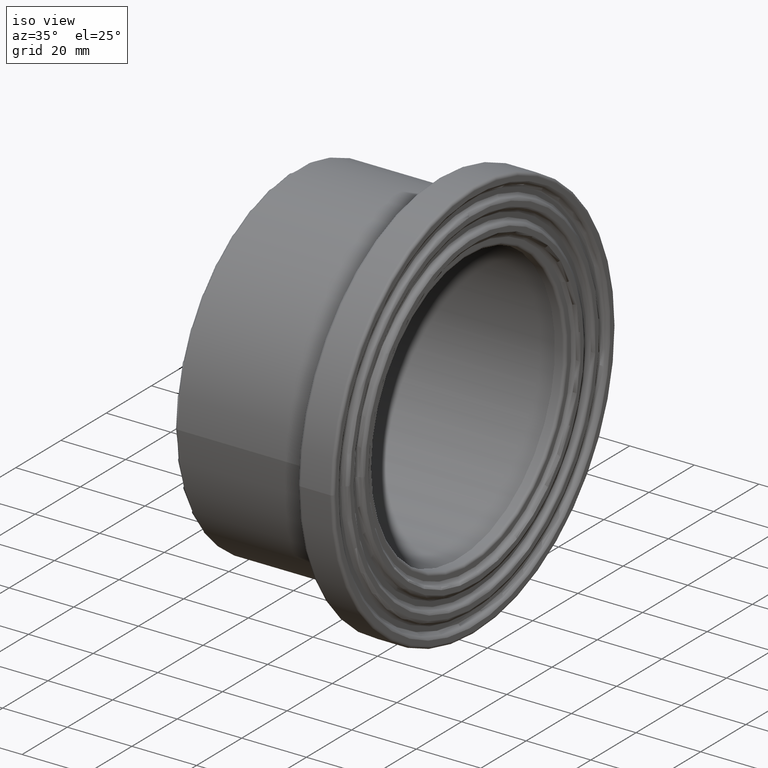
[diagram: clean part render]
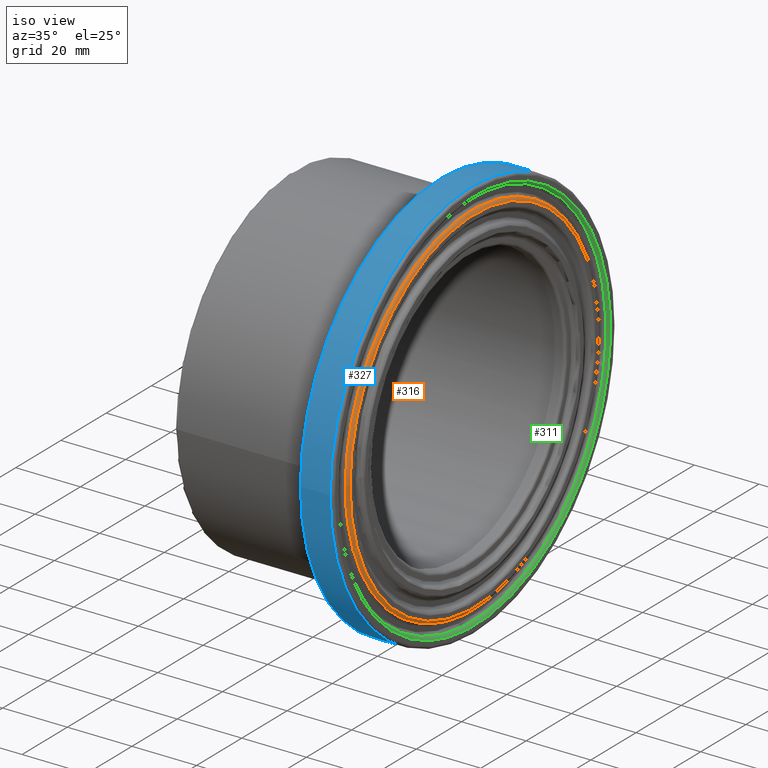
[diagram: same view with three faces highlighted in distinct colors, each labeled with its STEP entity id]
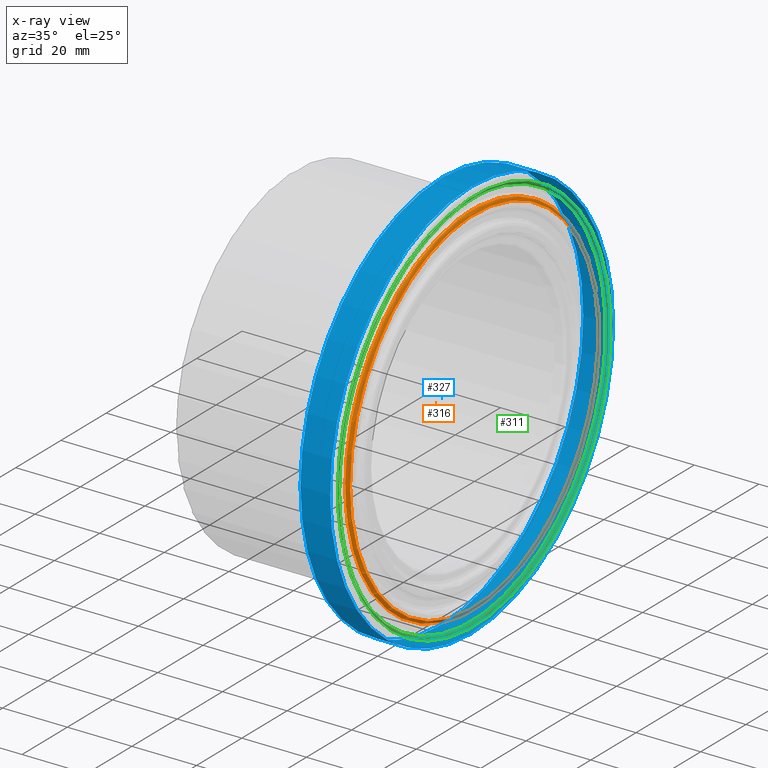
[diagram: x-ray of the same camera — body ghosted, the three highlighted faces saturated]
A machine part, iso view with three faces highlighted in distinct colors.
The next image is the same camera in x-ray (body ghosted, the three faces saturated) — at least one of them is partly hidden behind the body in this view.
Their STEP definitions:

[orange] entity #316 — the highlighted toroidal blend (fillet) surface has major radius 55.0167 mm and minor (blend) radius 0.9 mm.
#30=B_SPLINE_CURVE_WITH_KNOTS('',3,(#1364,#1365,#1366,#1367,#1368,#1369,
#1370,#1371,#1372,#1373,#1374,#1375,#1376,#1377,#1378,#1379,#1380,#1381,
#1382,#1383,#1384,#1385,#1386,#1387,#1388,#1389,#1390,#1391,#1392,#1393,
#1394,#1395,#1396,#1397,#1398,#1399,#1400,#1401,#1402,#1403,#1404,#1405,
#1406,#1407,#1408),.UNSPECIFIED.,.T.,.F.,(4,1,1,1,1,1,1,1,1,1,1,1,1,1,1,
1,1,1,1,1,1,1,1,1,1,1,1,1,1,1,1,1,1,1,1,1,1,1,1,1,1,1,4),(-17.7403219708621,
-17.4235305070968,-16.4731561158006,-15.205990260739,-13.9388244056774,
-13.7804286737947,-13.3052414781466,-12.6716585506158,-11.4044926955542,
-11.1668990977302,-10.7709097680235,-10.1373268404927,-8.87016098543108,
-8.55336952166568,-7.60299513036949,-6.33582927530791,-5.06866342024633,
-3.80149756518475,-3.16791463765396,-2.69272744200586,-2.53433171012317,
-0.844777236707723,0.84477723670772,1.68955447341544,2.32313740094623,2.53433171012316,
4.22388618353861,5.06866342024633,5.70224634777712,5.91344065695405,6.33582927530791,
7.60299513036949,8.23657805790028,8.87016098543107,10.1373268404927,10.7709097680234,
11.4044926955542,12.6716585506158,13.9388244056774,15.205990260739,15.8395731882698,
16.4731561158006,17.7403219708621),.UNSPECIFIED.);
#51=FACE_BOUND('',#114,.T.);
#77=FACE_OUTER_BOUND('',#113,.T.);
#113=EDGE_LOOP('',(#257));
#114=EDGE_LOOP('',(#258));
#154=CIRCLE('',#353,55.0166666666667);
#180=VERTEX_POINT('',#1362);
#181=VERTEX_POINT('',#1410);
#211=EDGE_CURVE('',#180,#180,#30,.T.);
#212=EDGE_CURVE('',#181,#181,#154,.T.);
#257=ORIENTED_EDGE('',*,*,#212,.T.);
#258=ORIENTED_EDGE('',*,*,#211,.F.);
#298=TOROIDAL_SURFACE('',#352,55.0166666666667,0.9);
#316=ADVANCED_FACE('',(#77,#51),#298,.T.);
#352=AXIS2_PLACEMENT_3D('',#1409,#417,#418);
#353=AXIS2_PLACEMENT_3D('',#1411,#419,#420);
#417=DIRECTION('center_axis',(-1.,0.,0.));
#418=DIRECTION('ref_axis',(0.,0.,1.));
#419=DIRECTION('center_axis',(-1.,0.,0.));
#420=DIRECTION('ref_axis',(0.,1.,6.12323399573677E-17));
#1362=CARTESIAN_POINT('',(55.175,-55.9135177970359,0.0453922252004739));
#1364=CARTESIAN_POINT('Ctrl Pts',(55.175,-55.9131509623106,0.0471687016405214));
#1365=CARTESIAN_POINT('Ctrl Pts',(55.175,-55.9122928399431,1.08799750689437));
#1366=CARTESIAN_POINT('Ctrl Pts',(55.175,-55.7965319444725,5.25926535189226));
#1367=CARTESIAN_POINT('Ctrl Pts',(55.175,-54.5981719908783,13.6322759894065));
#1368=CARTESIAN_POINT('Ctrl Pts',(55.175,-50.7896977527047,24.4848727135427));
#1369=CARTESIAN_POINT('Ctrl Pts',(55.175,-45.9991643498692,32.1038292095051));
#1370=CARTESIAN_POINT('Ctrl Pts',(55.175,-42.010614944861,36.9447142978551));
#1371=CARTESIAN_POINT('Ctrl Pts',(55.175,-39.1947147851468,40.0015427920602));
#1372=CARTESIAN_POINT('Ctrl Pts',(55.175,-33.3256902547513,45.242372841901));
#1373=CARTESIAN_POINT('Ctrl Pts',(55.175,-27.2724531552318,49.0293852173437));
#1374=CARTESIAN_POINT('Ctrl Pts',(55.175,-21.5929402063712,51.6074720105194));
#1375=CARTESIAN_POINT('Ctrl Pts',(55.175,-17.6998054186199,53.1223433980982));
#1376=CARTESIAN_POINT('Ctrl Pts',(55.175,-10.359279466872,55.2265622031622));
#1377=CARTESIAN_POINT('Ctrl Pts',(55.175,-3.05445734043409,56.0334001964731));
#1378=CARTESIAN_POINT('Ctrl Pts',(55.175,5.2872436627866,55.792195049407));
#1379=CARTESIAN_POINT('Ctrl Pts',(55.1750000000001,13.6572019705274,54.5928366524379));
#1380=CARTESIAN_POINT('Ctrl Pts',(55.1749999999999,24.5112935552137,50.778136627234));
#1381=CARTESIAN_POINT('Ctrl Pts',(55.1750000000001,35.2577410596596,44.0065223994022));
#1382=CARTESIAN_POINT('Ctrl Pts',(55.175,42.6314590482863,36.5951440530814));
#1383=CARTESIAN_POINT('Ctrl Pts',(55.175,47.2066622173805,30.1405379970932));
#1384=CARTESIAN_POINT('Ctrl Pts',(55.175,49.2675839686416,26.5033006348747));
#1385=CARTESIAN_POINT('Ctrl Pts',(55.175,52.6680947135056,19.6680759764681));
#1386=CARTESIAN_POINT('Ctrl Pts',(55.175,56.1148869801003,8.41823750611203));
#1387=CARTESIAN_POINT('Ctrl Pts',(55.175,56.1257614495683,-5.60272134489198));
#1388=CARTESIAN_POINT('Ctrl Pts',(55.175,53.7764251680406,-15.8953254268265));
#1389=CARTESIAN_POINT('Ctrl Pts',(55.175,51.838731929448,-21.0996178750399));
#1390=CARTESIAN_POINT('Ctrl Pts',(55.1750000000001,48.3638040259296,-28.6908326680599));
#1391=CARTESIAN_POINT('Ctrl Pts',(55.175,43.1587766321941,-36.3113488821216));
#1392=CARTESIAN_POINT('Ctrl Pts',(55.175,35.5149771313842,-43.3892074027893));
#1393=CARTESIAN_POINT('Ctrl Pts',(55.175,30.9321196483551,-46.6483732616814));
#1394=CARTESIAN_POINT('Ctrl Pts',(55.175,27.3367841619769,-48.8097274303188));
#1395=CARTESIAN_POINT('Ctrl Pts',(55.175,21.7920139444824,-51.7357163490984));
#1396=CARTESIAN_POINT('Ctrl Pts',(55.175,14.544853565809,-54.2751340414106));
#1397=CARTESIAN_POINT('Ctrl Pts',(55.175,6.21588625787339,-55.6849617169828));
#1398=CARTESIAN_POINT('Ctrl Pts',(55.175,-2.08942963539291,-56.1461782305316));
#1399=CARTESIAN_POINT('Ctrl Pts',(55.1749999999999,-10.4923655659142,-55.2042737476747));
#1400=CARTESIAN_POINT('Ctrl Pts',(55.175,-18.5510008536513,-52.8677841008181));
#1401=CARTESIAN_POINT('Ctrl Pts',(55.175,-26.2466592390811,-49.682820865482));
#1402=CARTESIAN_POINT('Ctrl Pts',(55.175,-35.2168317382732,-44.0350796370078));
#1403=CARTESIAN_POINT('Ctrl Pts',(55.175,-44.0827086462239,-35.1526264929434));
#1404=CARTESIAN_POINT('Ctrl Pts',(55.175,-49.7231553771372,-26.1737695579676));
#1405=CARTESIAN_POINT('Ctrl Pts',(55.175,-52.8885584212603,-18.488735456795));
#1406=CARTESIAN_POINT('Ctrl Pts',(55.175,-55.2255358575038,-10.389580737395));
#1407=CARTESIAN_POINT('Ctrl Pts',(55.1750000000001,-55.9165834517808,-4.11614651937488));
#1408=CARTESIAN_POINT('Ctrl Pts',(55.175,-55.9131509623106,0.0471687016405218));
#1409=CARTESIAN_POINT('Origin',(55.1,0.,0.));
#1410=CARTESIAN_POINT('',(56.,-55.0166666666667,3.36879923665451E-15));
#1411=CARTESIAN_POINT('Origin',(56.,0.,0.));

[blue] entity #327 — the highlighted cylindrical surface (bore or boss wall) has radius 62.5 mm, axis along (-1, 0, 0).
#22=CYLINDRICAL_SURFACE('',#371,62.5);
#60=FACE_BOUND('',#134,.T.);
#88=FACE_OUTER_BOUND('',#133,.T.);
#133=EDGE_LOOP('',(#283));
#134=EDGE_LOOP('',(#284));
#163=CIRCLE('',#370,62.5);
#164=CIRCLE('',#372,62.5);
#191=VERTEX_POINT('',#1997);
#192=VERTEX_POINT('',#2000);
#224=EDGE_CURVE('',#191,#191,#163,.T.);
#225=EDGE_CURVE('',#192,#192,#164,.T.);
#283=ORIENTED_EDGE('',*,*,#225,.F.);
#284=ORIENTED_EDGE('',*,*,#224,.F.);
#327=ADVANCED_FACE('',(#88,#60),#22,.T.);
#370=AXIS2_PLACEMENT_3D('',#1998,#453,#454);
#371=AXIS2_PLACEMENT_3D('',#1999,#455,#456);
#372=AXIS2_PLACEMENT_3D('',#2001,#457,#458);
#453=DIRECTION('center_axis',(1.,0.,0.));
#454=DIRECTION('ref_axis',(0.,1.,6.12323399573677E-17));
#455=DIRECTION('center_axis',(-1.,0.,0.));
#456=DIRECTION('ref_axis',(0.,-1.,0.));
#457=DIRECTION('center_axis',(-1.,0.,0.));
#458=DIRECTION('ref_axis',(0.,1.,6.12323399573677E-17));
#1997=CARTESIAN_POINT('',(55.1,-62.5,-1.14810637420064E-14));
#1998=CARTESIAN_POINT('Origin',(55.1,0.,0.));
#1999=CARTESIAN_POINT('Origin',(50.5,0.,0.));
#2000=CARTESIAN_POINT('',(45.9,-62.5,3.82702124733548E-15));
#2001=CARTESIAN_POINT('Origin',(45.9,0.,0.));

[green] entity #311 — the highlighted face is a freeform B-spline surface patch.
#16=B_SPLINE_SURFACE_WITH_KNOTS('',3,3,((#780,#781,#782,#783,#784,#785,
#786,#787,#788,#789,#790,#791,#792,#793,#794,#795,#796,#797,#798,#799,#800,
#801,#802,#803,#804,#805,#806,#807,#808,#809,#810,#811,#812,#813,#814,#815,
#816,#817,#818,#819,#820,#821,#822),(#823,#824,#825,#826,#827,#828,#829,
#830,#831,#832,#833,#834,#835,#836,#837,#838,#839,#840,#841,#842,#843,#844,
#845,#846,#847,#848,#849,#850,#851,#852,#853,#854,#855,#856,#857,#858,#859,
#860,#861,#862,#863,#864,#865),(#866,#867,#868,#869,#870,#871,#872,#873,
#874,#875,#876,#877,#878,#879,#880,#881,#882,#883,#884,#885,#886,#887,#888,
#889,#890,#891,#892,#893,#894,#895,#896,#897,#898,#899,#900,#901,#902,#903,
#904,#905,#906,#907,#908),(#909,#910,#911,#912,#913,#914,#915,#916,#917,
#918,#919,#920,#921,#922,#923,#924,#925,#926,#927,#928,#929,#930,#931,#932,
#933,#934,#935,#936,#937,#938,#939,#940,#941,#942,#943,#944,#945,#946,#947,
#948,#949,#950,#951),(#952,#953,#954,#955,#956,#957,#958,#959,#960,#961,
#962,#963,#964,#965,#966,#967,#968,#969,#970,#971,#972,#973,#974,#975,#976,
#977,#978,#979,#980,#981,#982,#983,#984,#985,#986,#987,#988,#989,#990,#991,
#992,#993,#994)),.UNSPECIFIED.,.F.,.T.,.F.,(4,1,4),(4,1,1,1,1,1,1,1,1,1,
1,1,1,1,1,1,1,1,1,1,1,1,1,1,1,1,1,1,1,1,1,1,1,1,1,1,1,1,1,1,4),(0.,0.571428571428571,
1.),(-18.7682186332356,-17.4276315880045,-16.7573380653889,-16.0870445427733,
-14.7464574975422,-13.4058704523111,-12.06528340708,-11.3949898844644,-10.7246963618489,
-10.0544028392333,-8.71381579400223,-8.04352227138667,-7.14979757456593,
-6.25607287774519,-6.03264170354,-5.36234818092445,-4.4686234841037,-2.68117409046222,
-2.45774291625704,-1.78744939364148,-0.893724696820739,2.68117409046222,
3.35146761307778,4.69205465830889,5.36234818092445,6.70293522615556,8.04352227138667,
8.37866903269445,9.38410931661778,10.0544028392333,10.7246963618489,11.5625632651183,
12.06528340708,12.7355769296956,13.4058704523111,13.7410172136189,14.7464574975422,
16.0870445427733,17.4276315880045,17.7627783493122,18.7682186332356),
 .UNSPECIFIED.);
#27=B_SPLINE_CURVE_WITH_KNOTS('',3,(#998,#999,#1000,#1001,#1002,#1003,#1004,
#1005,#1006,#1007,#1008,#1009,#1010,#1011,#1012,#1013,#1014,#1015,#1016,
#1017,#1018,#1019,#1020,#1021,#1022,#1023,#1024,#1025,#1026,#1027,#1028,
#1029,#1030,#1031,#1032,#1033,#1034,#1035,#1036,#1037,#1038,#1039,#1040),
 .UNSPECIFIED.,.T.,.F.,(4,1,1,1,1,1,1,1,1,1,1,1,1,1,1,1,1,1,1,1,1,1,1,1,
1,1,1,1,1,1,1,1,1,1,1,1,1,1,1,1,4),(-18.7682186332356,-17.4276315880045,
-16.7573380653889,-16.0870445427733,-14.7464574975422,-13.4058704523111,
-12.06528340708,-11.3949898844644,-10.7246963618489,-10.0544028392333,-8.71381579400223,
-8.04352227138667,-7.14979757456593,-6.25607287774519,-6.03264170354,-5.36234818092445,
-4.4686234841037,-2.68117409046222,-2.45774291625704,-1.78744939364148,
-0.893724696820739,2.68117409046222,3.35146761307778,4.69205465830889,5.36234818092445,
6.70293522615556,8.04352227138667,8.37866903269445,9.38410931661778,10.0544028392333,
10.7246963618489,11.5625632651183,12.06528340708,12.7355769296956,13.4058704523111,
13.7410172136189,14.7464574975422,16.0870445427733,17.4276315880045,17.7627783493122,
18.7682186332356),.UNSPECIFIED.);
#28=B_SPLINE_CURVE_WITH_KNOTS('',3,(#1041,#1042,#1043,#1044,#1045,#1046,
#1047,#1048,#1049,#1050,#1051,#1052,#1053,#1054,#1055,#1056,#1057,#1058,
#1059,#1060,#1061,#1062,#1063,#1064,#1065,#1066,#1067,#1068,#1069,#1070,
#1071,#1072,#1073,#1074,#1075,#1076,#1077,#1078,#1079,#1080,#1081,#1082,
#1083),.UNSPECIFIED.,.T.,.F.,(4,1,1,1,1,1,1,1,1,1,1,1,1,1,1,1,1,1,1,1,1,
1,1,1,1,1,1,1,1,1,1,1,1,1,1,1,1,1,1,1,4),(-18.7682186332356,-17.7627783493122,
-17.4276315880045,-16.0870445427733,-14.7464574975422,-13.7410172136189,
-13.4058704523111,-12.7355769296956,-12.06528340708,-11.5625632651183,-10.7246963618489,
-10.0544028392333,-9.38410931661778,-8.37866903269445,-8.04352227138667,
-6.70293522615556,-5.36234818092445,-4.69205465830889,-3.35146761307778,
-2.68117409046222,0.893724696820739,1.78744939364148,2.45774291625704,2.68117409046222,
4.4686234841037,5.36234818092445,6.03264170354,6.25607287774519,7.14979757456593,
8.04352227138667,8.71381579400223,10.0544028392333,10.7246963618489,11.3949898844644,
12.06528340708,13.4058704523111,14.7464574975422,16.0870445427733,16.7573380653889,
17.4276315880045,18.7682186332356),.UNSPECIFIED.);
#72=FACE_OUTER_BOUND('',#105,.T.);
#105=EDGE_LOOP('',(#243,#244,#245,#246));
#150=CIRCLE('',#345,0.899999999999999);
#175=VERTEX_POINT('',#995);
#176=VERTEX_POINT('',#996);
#204=EDGE_CURVE('',#175,#176,#150,.T.);
#205=EDGE_CURVE('',#176,#176,#27,.T.);
#206=EDGE_CURVE('',#175,#175,#28,.T.);
#243=ORIENTED_EDGE('',*,*,#204,.T.);
#244=ORIENTED_EDGE('',*,*,#205,.T.);
#245=ORIENTED_EDGE('',*,*,#204,.F.);
#246=ORIENTED_EDGE('',*,*,#206,.T.);
#311=ADVANCED_FACE('',(#72),#16,.F.);
#345=AXIS2_PLACEMENT_3D('',#997,#403,#404);
#403=DIRECTION('center_axis',(0.,-0.00081182891062731,0.999999670466856));
#404=DIRECTION('ref_axis',(1.,0.,0.));
#780=CARTESIAN_POINT('Ctrl Pts',(55.175,-59.2049275197024,-0.0502678741885322));
#781=CARTESIAN_POINT('Ctrl Pts',(55.175,-59.2084846728856,4.35863818547967));
#782=CARTESIAN_POINT('Ctrl Pts',(55.175,-58.4766147282909,11.0011340939194));
#783=CARTESIAN_POINT('Ctrl Pts',(55.175,-56.0022257666673,19.5771928523983));
#784=CARTESIAN_POINT('Ctrl Pts',(55.175,-52.6501730031831,27.7146579415436));
#785=CARTESIAN_POINT('Ctrl Pts',(55.1750000000001,-46.678456051759,37.2219784697004));
#786=CARTESIAN_POINT('Ctrl Pts',(55.175,-37.2890076588373,46.6276735658816));
#787=CARTESIAN_POINT('Ctrl Pts',(55.175,-27.7936265869923,52.6072953593267));
#788=CARTESIAN_POINT('Ctrl Pts',(55.175,-19.6407531861158,55.9807020861136));
#789=CARTESIAN_POINT('Ctrl Pts',(55.175,-13.2503780279469,57.8344505388554));
#790=CARTESIAN_POINT('Ctrl Pts',(55.175,-4.44694746754413,59.3275134885849));
#791=CARTESIAN_POINT('Ctrl Pts',(55.175,4.39517485802123,59.3327539378913));
#792=CARTESIAN_POINT('Ctrl Pts',(55.175,13.9200151880647,57.7230561914045));
#793=CARTESIAN_POINT('Ctrl Pts',(55.175,21.7064130704671,55.3189714583853));
#794=CARTESIAN_POINT('Ctrl Pts',(55.175,27.6734751820603,52.4473631948881));
#795=CARTESIAN_POINT('Ctrl Pts',(55.175,32.7542965693837,49.3942639120095));
#796=CARTESIAN_POINT('Ctrl Pts',(55.175,37.6041529038334,45.9446807256263));
#797=CARTESIAN_POINT('Ctrl Pts',(55.175,45.7014433174338,38.4485137748699));
#798=CARTESIAN_POINT('Ctrl Pts',(55.175,51.2093476130477,30.3791695903287));
#799=CARTESIAN_POINT('Ctrl Pts',(55.175,54.8916483623632,22.3430140878747));
#800=CARTESIAN_POINT('Ctrl Pts',(55.175,56.9359314532892,16.8274976057648));
#801=CARTESIAN_POINT('Ctrl Pts',(55.175,60.7818422944185,0.134912896678023));
#802=CARTESIAN_POINT('Ctrl Pts',(55.1750000000001,58.1374263218863,-17.237095931236));
#803=CARTESIAN_POINT('Ctrl Pts',(55.175,49.2318014520356,-33.4048513500494));
#804=CARTESIAN_POINT('Ctrl Pts',(55.1750000000001,43.6488785534552,-40.4282329845888));
#805=CARTESIAN_POINT('Ctrl Pts',(55.175,35.4462913764002,-47.7810572496215));
#806=CARTESIAN_POINT('Ctrl Pts',(55.175,25.947447725065,-53.7772324973428));
#807=CARTESIAN_POINT('Ctrl Pts',(55.175,16.5529494498772,-57.0667339123795));
#808=CARTESIAN_POINT('Ctrl Pts',(55.175,7.83046783619135,-58.8245675715668));
#809=CARTESIAN_POINT('Ctrl Pts',(55.175,1.16638324403202,-59.3885087167652));
#810=CARTESIAN_POINT('Ctrl Pts',(55.175,-6.53516505773589,-58.9673463002713));
#811=CARTESIAN_POINT('Ctrl Pts',(55.175,-13.6698656300761,-57.7711627752014));
#812=CARTESIAN_POINT('Ctrl Pts',(55.175,-20.0715581838278,-55.8328616934473));
#813=CARTESIAN_POINT('Ctrl Pts',(55.175,-26.1482626322427,-53.2240031555361));
#814=CARTESIAN_POINT('Ctrl Pts',(55.175,-31.4867160762638,-50.2851922841631));
#815=CARTESIAN_POINT('Ctrl Pts',(55.175,-36.0366970625983,-47.0684641436442));
#816=CARTESIAN_POINT('Ctrl Pts',(55.175,-41.1271988328436,-42.7721593535129));
#817=CARTESIAN_POINT('Ctrl Pts',(55.175,-47.2064890906261,-36.370422494712));
#818=CARTESIAN_POINT('Ctrl Pts',(55.175,-53.7860182897923,-25.9227381733071));
#819=CARTESIAN_POINT('Ctrl Pts',(55.175,-57.0750421352433,-16.5275870280574));
#820=CARTESIAN_POINT('Ctrl Pts',(55.175,-58.8288457816191,-7.79784110452222));
#821=CARTESIAN_POINT('Ctrl Pts',(55.175,-59.202259654815,-3.35694741893969));
#822=CARTESIAN_POINT('Ctrl Pts',(55.175,-59.2049275197024,-0.0502678741885322));
#823=CARTESIAN_POINT('Ctrl Pts',(55.4290901902944,-59.2261713377879,-0.050287264669298));
#824=CARTESIAN_POINT('Ctrl Pts',(55.4290901902945,-59.229729686294,4.36016324440964));
#825=CARTESIAN_POINT('Ctrl Pts',(55.4290901902944,-58.497602172066,11.0050939039391));
#826=CARTESIAN_POINT('Ctrl Pts',(55.4290901902944,-56.0223079903479,19.5842416336455));
#827=CARTESIAN_POINT('Ctrl Pts',(55.4290901902945,-52.6690866669604,27.7245650757659));
#828=CARTESIAN_POINT('Ctrl Pts',(55.4290901902944,-46.6951849325023,37.235357762421));
#829=CARTESIAN_POINT('Ctrl Pts',(55.4290901902945,-37.3024132383814,46.6443846933592));
#830=CARTESIAN_POINT('Ctrl Pts',(55.4290901902944,-27.8035575748291,52.6261947974222));
#831=CARTESIAN_POINT('Ctrl Pts',(55.4290901902944,-19.6478086649297,56.0007839215136));
#832=CARTESIAN_POINT('Ctrl Pts',(55.4290901902944,-13.2551616958921,57.8551977002016));
#833=CARTESIAN_POINT('Ctrl Pts',(55.4290901902945,-4.44853051379227,59.3488005667505));
#834=CARTESIAN_POINT('Ctrl Pts',(55.4290901902944,4.39674018985193,59.3540470013009));
#835=CARTESIAN_POINT('Ctrl Pts',(55.4290901902944,13.9250334320631,57.7437598516166));
#836=CARTESIAN_POINT('Ctrl Pts',(55.4290901902944,21.7142045874583,55.3388238769034));
#837=CARTESIAN_POINT('Ctrl Pts',(55.4290901902944,27.6834125377751,52.4661734731929));
#838=CARTESIAN_POINT('Ctrl Pts',(55.4290901902945,32.7660349519983,49.4120016555477));
#839=CARTESIAN_POINT('Ctrl Pts',(55.4290901902944,37.6176610292432,45.9611441397846));
#840=CARTESIAN_POINT('Ctrl Pts',(55.4290901902945,45.7177872263439,38.4623847975518));
#841=CARTESIAN_POINT('Ctrl Pts',(55.4290901902944,51.2277648261072,30.389994625881));
#842=CARTESIAN_POINT('Ctrl Pts',(55.4290901902944,54.9113389070466,22.3510428092394));
#843=CARTESIAN_POINT('Ctrl Pts',(55.4290901902944,56.9563517968491,16.833576037674));
#844=CARTESIAN_POINT('Ctrl Pts',(55.4290901902944,60.8036524149522,0.134936666301422));
#845=CARTESIAN_POINT('Ctrl Pts',(55.4290901902945,58.1582896384767,-17.24327960827));
#846=CARTESIAN_POINT('Ctrl Pts',(55.4290901902944,49.2494573743155,-33.4168483856729));
#847=CARTESIAN_POINT('Ctrl Pts',(55.4290901902945,43.6645331693913,-40.4427508679667));
#848=CARTESIAN_POINT('Ctrl Pts',(55.4290901902944,35.4590277744697,-47.798180248342));
#849=CARTESIAN_POINT('Ctrl Pts',(55.4290901902944,25.9567698514126,-53.796537880624));
#850=CARTESIAN_POINT('Ctrl Pts',(55.4290901902944,16.5588508475268,-57.0872131713553));
#851=CARTESIAN_POINT('Ctrl Pts',(55.4290901902944,7.83330562026307,-58.8456748003595));
#852=CARTESIAN_POINT('Ctrl Pts',(55.4290901902945,1.16676789927672,-59.4098157119737));
#853=CARTESIAN_POINT('Ctrl Pts',(55.4290901902944,-6.53749075558818,-58.9885080531244));
#854=CARTESIAN_POINT('Ctrl Pts',(55.4290901902944,-13.6747759318372,-57.7918887572469));
#855=CARTESIAN_POINT('Ctrl Pts',(55.4290901902944,-20.0787883555186,-55.8528888774192));
#856=CARTESIAN_POINT('Ctrl Pts',(55.4290901902945,-26.157624306259,-53.2431051883602));
#857=CARTESIAN_POINT('Ctrl Pts',(55.4290901902944,-31.4979883400231,-50.3032594271223));
#858=CARTESIAN_POINT('Ctrl Pts',(55.4290901902945,-36.0496580976605,-47.0853234919542));
#859=CARTESIAN_POINT('Ctrl Pts',(55.4290901902944,-41.1419316666167,-42.7875354304268));
#860=CARTESIAN_POINT('Ctrl Pts',(55.4290901902945,-47.2234358887975,-36.3834511516435));
#861=CARTESIAN_POINT('Ctrl Pts',(55.4290901902944,-53.8053098210202,-25.9320730315134));
#862=CARTESIAN_POINT('Ctrl Pts',(55.4290901902945,-57.0955301757174,-16.5334701496404));
#863=CARTESIAN_POINT('Ctrl Pts',(55.4290901902944,-58.8499517467103,-7.80067441555198));
#864=CARTESIAN_POINT('Ctrl Pts',(55.4290901902944,-59.2235025764084,-3.35812514647851));
#865=CARTESIAN_POINT('Ctrl Pts',(55.4290901902944,-59.2261713377879,-0.050287264669298));
#866=CARTESIAN_POINT('Ctrl Pts',(55.8530033376363,-59.4638175611252,-0.0504873569115192));
#867=CARTESIAN_POINT('Ctrl Pts',(55.8530033376364,-59.4673902885676,4.37770696018613));
#868=CARTESIAN_POINT('Ctrl Pts',(55.8530033376363,-58.7323188192294,11.049236616706));
#869=CARTESIAN_POINT('Ctrl Pts',(55.8530033376364,-56.2471141048652,19.6627937442616));
#870=CARTESIAN_POINT('Ctrl Pts',(55.8530033376362,-52.8803952751228,27.8358570558208));
#871=CARTESIAN_POINT('Ctrl Pts',(55.8530033376365,-46.8825754974865,37.3847362874532));
#872=CARTESIAN_POINT('Ctrl Pts',(55.8530033376362,-37.4520580393515,46.8315708376712));
#873=CARTESIAN_POINT('Ctrl Pts',(55.8530033376364,-27.9151720983657,52.8373298561719));
#874=CARTESIAN_POINT('Ctrl Pts',(55.8530033376363,-19.7266359119919,56.2254945308355));
#875=CARTESIAN_POINT('Ctrl Pts',(55.8530033376364,-13.3083119335121,58.0873489747974));
#876=CARTESIAN_POINT('Ctrl Pts',(55.8530033376363,-4.46639603393594,59.5869397470253));
#877=CARTESIAN_POINT('Ctrl Pts',(55.8530033376363,4.41439682549727,59.5922021181867));
#878=CARTESIAN_POINT('Ctrl Pts',(55.8530033376363,13.9808786487196,57.9754683790542));
#879=CARTESIAN_POINT('Ctrl Pts',(55.8530033376364,21.8013297182273,55.5608683595193));
#880=CARTESIAN_POINT('Ctrl Pts',(55.8530033376363,27.7944833225918,52.676706033592));
#881=CARTESIAN_POINT('Ctrl Pts',(55.8530033376363,32.8975273573664,49.6102506633517));
#882=CARTESIAN_POINT('Ctrl Pts',(55.8530033376363,37.7685838942095,46.1455920605675));
#883=CARTESIAN_POINT('Ctrl Pts',(55.8530033376363,45.9012988287235,38.6166224652358));
#884=CARTESIAN_POINT('Ctrl Pts',(55.8530033376364,51.4332645024325,30.5120292632535));
#885=CARTESIAN_POINT('Ctrl Pts',(55.8530033376363,55.1316787416559,22.4407123259522));
#886=CARTESIAN_POINT('Ctrl Pts',(55.8530033376363,57.1849019321264,16.9010707460261));
#887=CARTESIAN_POINT('Ctrl Pts',(55.8530033376362,61.0476277197608,0.135508804234876));
#888=CARTESIAN_POINT('Ctrl Pts',(55.8530033376365,58.391647802739,-17.312470252979));
#889=CARTESIAN_POINT('Ctrl Pts',(55.8530033376362,49.4470834849928,-33.550920765798));
#890=CARTESIAN_POINT('Ctrl Pts',(55.8530033376364,43.8397472287628,-40.6050139169485));
#891=CARTESIAN_POINT('Ctrl Pts',(55.8530033376362,35.6012858981104,-47.9899984931133));
#892=CARTESIAN_POINT('Ctrl Pts',(55.8530033376365,26.0609073370825,-54.0123862222509));
#893=CARTESIAN_POINT('Ctrl Pts',(55.8530033376362,16.625341055717,-57.316273461728));
#894=CARTESIAN_POINT('Ctrl Pts',(55.8530033376364,7.86470194547082,-59.0817944095538));
#895=CARTESIAN_POINT('Ctrl Pts',(55.8530033376363,1.17149177570967,-59.6482021704175));
#896=CARTESIAN_POINT('Ctrl Pts',(55.8530033376363,-6.56374654422607,-59.2251966811921));
#897=CARTESIAN_POINT('Ctrl Pts',(55.8530033376362,-13.7296396430114,-58.0237840975873));
#898=CARTESIAN_POINT('Ctrl Pts',(55.8530033376364,-20.1593198570158,-56.0770080529606));
#899=CARTESIAN_POINT('Ctrl Pts',(55.8530033376363,-26.2626082311445,-53.4567389027742));
#900=CARTESIAN_POINT('Ctrl Pts',(55.8530033376363,-31.6244067472191,-50.5050725160961));
#901=CARTESIAN_POINT('Ctrl Pts',(55.8530033376363,-36.1942702025589,-47.2742913014599));
#902=CARTESIAN_POINT('Ctrl Pts',(55.8530033376363,-41.3070448649537,-42.9591856064127));
#903=CARTESIAN_POINT('Ctrl Pts',(55.8530033376363,-47.412910622546,-36.5294675574932));
#904=CARTESIAN_POINT('Ctrl Pts',(55.8530033376364,-54.0212145485021,-26.0360845087102));
#905=CARTESIAN_POINT('Ctrl Pts',(55.8530033376363,-57.3246166107978,-16.5998699503289));
#906=CARTESIAN_POINT('Ctrl Pts',(55.8530033376364,-59.0860920046431,-7.83193079353276));
#907=CARTESIAN_POINT('Ctrl Pts',(55.8530033376363,-59.4611380155435,-3.37163309473476));
#908=CARTESIAN_POINT('Ctrl Pts',(55.8530033376363,-59.4638175611252,-0.0504873569115192));
#909=CARTESIAN_POINT('Ctrl Pts',(56.,-59.91056159827,-0.050866795025129));
#910=CARTESIAN_POINT('Ctrl Pts',(56.,-59.9141611591865,4.41059228645567));
#911=CARTESIAN_POINT('Ctrl Pts',(56.,-59.1735676875745,11.1322493339811));
#912=CARTESIAN_POINT('Ctrl Pts',(56.,-56.6696902415757,19.8105201645265));
#913=CARTESIAN_POINT('Ctrl Pts',(56.,-53.2776810493802,28.0449806040692));
#914=CARTESIAN_POINT('Ctrl Pts',(56.0000000000001,-47.2347962891365,37.665605314845));
#915=CARTESIAN_POINT('Ctrl Pts',(56.,-37.733433066236,47.1834084839084));
#916=CARTESIAN_POINT('Ctrl Pts',(56.,-28.1248910896966,53.2342921994744));
#917=CARTESIAN_POINT('Ctrl Pts',(56.,-19.874840386388,56.6479089636386));
#918=CARTESIAN_POINT('Ctrl Pts',(56.,-13.4082984446184,58.5237512977263));
#919=CARTESIAN_POINT('Ctrl Pts',(56.,-4.4999502557704,60.0346087139818));
#920=CARTESIAN_POINT('Ctrl Pts',(56.,4.44756046875412,60.0399110242664));
#921=CARTESIAN_POINT('Ctrl Pts',(56.,14.0859175066774,58.4110298102544));
#922=CARTESIAN_POINT('Ctrl Pts',(56.,21.9651205939705,55.9782903300808));
#923=CARTESIAN_POINT('Ctrl Pts',(56.,28.0033004596847,53.0724585066767));
#924=CARTESIAN_POINT('Ctrl Pts',(56.,33.1446808404709,49.9829675092266));
#925=CARTESIAN_POINT('Ctrl Pts',(56.,38.0523359035191,46.4922757763467));
#926=CARTESIAN_POINT('Ctrl Pts',(56.0000000000001,46.2461440321019,38.9067515716049));
#927=CARTESIAN_POINT('Ctrl Pts',(56.,51.8196801886822,30.741254796739));
#928=CARTESIAN_POINT('Ctrl Pts',(56.,55.5458754257294,22.6093076645441));
#929=CARTESIAN_POINT('Ctrl Pts',(56.,57.6145238522722,17.0280502973734));
#930=CARTESIAN_POINT('Ctrl Pts',(56.0000000000001,61.5062707663986,0.136524441867819));
#931=CARTESIAN_POINT('Ctrl Pts',(56.,58.8303370154612,-17.4425364934216));
#932=CARTESIAN_POINT('Ctrl Pts',(56.,49.8185721635592,-33.8029855897038));
#933=CARTESIAN_POINT('Ctrl Pts',(56.,44.169108900634,-40.9100753099418));
#934=CARTESIAN_POINT('Ctrl Pts',(56.0000000000001,35.8687555264859,-48.3505390627187));
#935=CARTESIAN_POINT('Ctrl Pts',(55.9999999999999,26.2567007432965,-54.4181752516179));
#936=CARTESIAN_POINT('Ctrl Pts',(56.0000000000001,16.7502413648055,-57.7468835373474));
#937=CARTESIAN_POINT('Ctrl Pts',(56.,7.92379120254133,-59.5256683450111));
#938=CARTESIAN_POINT('Ctrl Pts',(56.0000000000001,1.18028971355571,-60.0963312004917));
#939=CARTESIAN_POINT('Ctrl Pts',(55.9999999999999,-6.6130572387341,-59.6701483032508));
#940=CARTESIAN_POINT('Ctrl Pts',(56.,-13.8327891866306,-58.45970901613));
#941=CARTESIAN_POINT('Ctrl Pts',(56.,-20.3107770078961,-56.4983067682257));
#942=CARTESIAN_POINT('Ctrl Pts',(56.,-26.459913793991,-53.8583529490339));
#943=CARTESIAN_POINT('Ctrl Pts',(56.,-31.86199432858,-50.8845129993148));
#944=CARTESIAN_POINT('Ctrl Pts',(56.,-36.4661961033929,-47.6294540721585));
#945=CARTESIAN_POINT('Ctrl Pts',(56.,-41.6173770014306,-43.2819352756663));
#946=CARTESIAN_POINT('Ctrl Pts',(56.,-47.7691185512271,-36.8039066279976));
#947=CARTESIAN_POINT('Ctrl Pts',(56.,-54.4270682320141,-26.2316935477863));
#948=CARTESIAN_POINT('Ctrl Pts',(56.,-57.7552899377345,-16.7245779961001));
#949=CARTESIAN_POINT('Ctrl Pts',(56.,-59.5299979521949,-7.89077455641171));
#950=CARTESIAN_POINT('Ctrl Pts',(56.,-59.9078619275826,-3.39696110613574));
#951=CARTESIAN_POINT('Ctrl Pts',(56.,-59.91056159827,-0.050866795025129));
#952=CARTESIAN_POINT('Ctrl Pts',(56.,-60.1017929040043,-0.0510293566899181));
#953=CARTESIAN_POINT('Ctrl Pts',(56.,-60.1054039426949,4.42466498215048));
#954=CARTESIAN_POINT('Ctrl Pts',(56.,-59.3624472719337,11.1677846882237));
#955=CARTESIAN_POINT('Ctrl Pts',(56.,-56.8505750483598,19.8737578061393));
#956=CARTESIAN_POINT('Ctrl Pts',(56.,-53.4477437396449,28.1344932219308));
#957=CARTESIAN_POINT('Ctrl Pts',(56.0000000000001,-47.3855642804036,37.7858353212031));
#958=CARTESIAN_POINT('Ctrl Pts',(56.,-37.8538799014906,47.3340125164336));
#959=CARTESIAN_POINT('Ctrl Pts',(56.,-28.2146581232913,53.404216564134));
#960=CARTESIAN_POINT('Ctrl Pts',(56.,-19.938280983078,56.8287253164983));
#961=CARTESIAN_POINT('Ctrl Pts',(56.,-13.4511012765013,58.7105552632664));
#962=CARTESIAN_POINT('Ctrl Pts',(56.,-4.51431201668781,60.2262358654835));
#963=CARTESIAN_POINT('Ctrl Pts',(56.,4.461755130192,60.2315556996955));
#964=CARTESIAN_POINT('Ctrl Pts',(56.,14.1308824299337,58.597473459409));
#965=CARTESIAN_POINT('Ctrl Pts',(56.,22.0352325001299,56.1569704674999));
#966=CARTESIAN_POINT('Ctrl Pts',(56.,28.0926866057356,53.2418616685456));
#967=CARTESIAN_POINT('Ctrl Pts',(56.,33.2504747763491,50.1425125349137));
#968=CARTESIAN_POINT('Ctrl Pts',(56.,38.1737991217807,46.6406733644469));
#969=CARTESIAN_POINT('Ctrl Pts',(56.0000000000001,46.3937512762673,39.0309507869085));
#970=CARTESIAN_POINT('Ctrl Pts',(56.,51.9850920172874,30.8393682047149));
#971=CARTESIAN_POINT('Ctrl Pts',(56.,55.7231740708796,22.6814770631011));
#972=CARTESIAN_POINT('Ctrl Pts',(56.,57.798424968317,17.082408822437));
#973=CARTESIAN_POINT('Ctrl Pts',(56.0000000000001,61.7025955599273,0.136956623644655));
#974=CARTESIAN_POINT('Ctrl Pts',(56.,59.0181206725912,-17.4982119449576));
#975=CARTESIAN_POINT('Ctrl Pts',(56.,49.9775890136278,-33.9108844810526));
#976=CARTESIAN_POINT('Ctrl Pts',(56.,44.3100932509171,-41.0406597576865));
#977=CARTESIAN_POINT('Ctrl Pts',(56.0000000000001,35.9832492457735,-48.5048682239407));
#978=CARTESIAN_POINT('Ctrl Pts',(55.9999999999999,26.3405124352253,-54.5918764857908));
#979=CARTESIAN_POINT('Ctrl Pts',(56.0000000000001,16.8037016759441,-57.9312088874422));
#980=CARTESIAN_POINT('Ctrl Pts',(56.,7.94908761733765,-59.7156710761511));
#981=CARTESIAN_POINT('Ctrl Pts',(56.0000000000001,1.18405219153735,-60.2881550794038));
#982=CARTESIAN_POINT('Ctrl Pts',(55.9999999999999,-6.63416295481182,-59.8606126873175));
#983=CARTESIAN_POINT('Ctrl Pts',(56.,-13.8769434833104,-58.6463087854166));
#984=CARTESIAN_POINT('Ctrl Pts',(56.,-20.375612026949,-56.678645364793));
#985=CARTESIAN_POINT('Ctrl Pts',(56.,-26.5443693854634,-54.0302665536002));
#986=CARTESIAN_POINT('Ctrl Pts',(56.,-31.9636923499827,-51.0469371285871));
#987=CARTESIAN_POINT('Ctrl Pts',(56.,-36.5825986879193,-47.7814804068368));
#988=CARTESIAN_POINT('Ctrl Pts',(56.,-41.7502138846601,-43.4200930769897));
#989=CARTESIAN_POINT('Ctrl Pts',(56.,-47.9215962236551,-36.9213795571471));
#990=CARTESIAN_POINT('Ctrl Pts',(56.,-54.600795369749,-26.3154285710147));
#991=CARTESIAN_POINT('Ctrl Pts',(56.,-57.9396429673554,-16.7779550516745));
#992=CARTESIAN_POINT('Ctrl Pts',(56.,-59.7200140946352,-7.91596663987745));
#993=CARTESIAN_POINT('Ctrl Pts',(56.,-60.0990846249864,-3.40780011082022));
#994=CARTESIAN_POINT('Ctrl Pts',(56.,-60.1017929040043,-0.0510293566899181));
#995=CARTESIAN_POINT('',(56.,-60.1020526391736,-0.0487925999990432));
#996=CARTESIAN_POINT('',(55.175,-59.2051833789893,-0.048064495364638));
#997=CARTESIAN_POINT('Origin',(55.1,-60.1020526391736,-0.0487925999990432));
#998=CARTESIAN_POINT('Ctrl Pts',(55.175,-59.2049275197024,-0.0502678741885322));
#999=CARTESIAN_POINT('Ctrl Pts',(55.175,-59.2084846728856,4.35863818547967));
#1000=CARTESIAN_POINT('Ctrl Pts',(55.175,-58.4766147282909,11.0011340939194));
#1001=CARTESIAN_POINT('Ctrl Pts',(55.175,-56.0022257666673,19.5771928523983));
#1002=CARTESIAN_POINT('Ctrl Pts',(55.175,-52.6501730031831,27.7146579415436));
#1003=CARTESIAN_POINT('Ctrl Pts',(55.1750000000001,-46.678456051759,37.2219784697004));
#1004=CARTESIAN_POINT('Ctrl Pts',(55.175,-37.2890076588373,46.6276735658816));
#1005=CARTESIAN_POINT('Ctrl Pts',(55.175,-27.7936265869923,52.6072953593267));
#1006=CARTESIAN_POINT('Ctrl Pts',(55.175,-19.6407531861158,55.9807020861136));
#1007=CARTESIAN_POINT('Ctrl Pts',(55.175,-13.2503780279469,57.8344505388554));
#1008=CARTESIAN_POINT('Ctrl Pts',(55.175,-4.44694746754413,59.3275134885849));
#1009=CARTESIAN_POINT('Ctrl Pts',(55.175,4.39517485802123,59.3327539378913));
#1010=CARTESIAN_POINT('Ctrl Pts',(55.175,13.9200151880647,57.7230561914045));
#1011=CARTESIAN_POINT('Ctrl Pts',(55.175,21.7064130704671,55.3189714583853));
#1012=CARTESIAN_POINT('Ctrl Pts',(55.175,27.6734751820603,52.4473631948881));
#1013=CARTESIAN_POINT('Ctrl Pts',(55.175,32.7542965693837,49.3942639120095));
#1014=CARTESIAN_POINT('Ctrl Pts',(55.175,37.6041529038334,45.9446807256263));
#1015=CARTESIAN_POINT('Ctrl Pts',(55.175,45.7014433174338,38.4485137748699));
#1016=CARTESIAN_POINT('Ctrl Pts',(55.175,51.2093476130477,30.3791695903287));
#1017=CARTESIAN_POINT('Ctrl Pts',(55.175,54.8916483623632,22.3430140878747));
#1018=CARTESIAN_POINT('Ctrl Pts',(55.175,56.9359314532892,16.8274976057648));
#1019=CARTESIAN_POINT('Ctrl Pts',(55.175,60.7818422944185,0.134912896678023));
#1020=CARTESIAN_POINT('Ctrl Pts',(55.1750000000001,58.1374263218863,-17.237095931236));
#1021=CARTESIAN_POINT('Ctrl Pts',(55.175,49.2318014520356,-33.4048513500494));
#1022=CARTESIAN_POINT('Ctrl Pts',(55.1750000000001,43.6488785534552,-40.4282329845888));
#1023=CARTESIAN_POINT('Ctrl Pts',(55.175,35.4462913764002,-47.7810572496215));
#1024=CARTESIAN_POINT('Ctrl Pts',(55.175,25.947447725065,-53.7772324973428));
#1025=CARTESIAN_POINT('Ctrl Pts',(55.175,16.5529494498772,-57.0667339123795));
#1026=CARTESIAN_POINT('Ctrl Pts',(55.175,7.83046783619135,-58.8245675715668));
#1027=CARTESIAN_POINT('Ctrl Pts',(55.175,1.16638324403202,-59.3885087167652));
#1028=CARTESIAN_POINT('Ctrl Pts',(55.175,-6.53516505773589,-58.9673463002713));
#1029=CARTESIAN_POINT('Ctrl Pts',(55.175,-13.6698656300761,-57.7711627752014));
#1030=CARTESIAN_POINT('Ctrl Pts',(55.175,-20.0715581838278,-55.8328616934473));
#1031=CARTESIAN_POINT('Ctrl Pts',(55.175,-26.1482626322427,-53.2240031555361));
#1032=CARTESIAN_POINT('Ctrl Pts',(55.175,-31.4867160762638,-50.2851922841631));
#1033=CARTESIAN_POINT('Ctrl Pts',(55.175,-36.0366970625983,-47.0684641436442));
#1034=CARTESIAN_POINT('Ctrl Pts',(55.175,-41.1271988328436,-42.7721593535129));
#1035=CARTESIAN_POINT('Ctrl Pts',(55.175,-47.2064890906261,-36.370422494712));
#1036=CARTESIAN_POINT('Ctrl Pts',(55.175,-53.7860182897923,-25.9227381733071));
#1037=CARTESIAN_POINT('Ctrl Pts',(55.175,-57.0750421352433,-16.5275870280574));
#1038=CARTESIAN_POINT('Ctrl Pts',(55.175,-58.8288457816191,-7.79784110452222));
#1039=CARTESIAN_POINT('Ctrl Pts',(55.175,-59.202259654815,-3.35694741893969));
#1040=CARTESIAN_POINT('Ctrl Pts',(55.175,-59.2049275197024,-0.0502678741885322));
#1041=CARTESIAN_POINT('Ctrl Pts',(56.,-60.1017929040043,-0.0510293566899181));
#1042=CARTESIAN_POINT('Ctrl Pts',(56.,-60.0990846249864,-3.40780011082022));
#1043=CARTESIAN_POINT('Ctrl Pts',(56.,-59.7200140946352,-7.91596663987745));
#1044=CARTESIAN_POINT('Ctrl Pts',(56.,-57.9396429673554,-16.7779550516745));
#1045=CARTESIAN_POINT('Ctrl Pts',(56.,-54.600795369749,-26.3154285710147));
#1046=CARTESIAN_POINT('Ctrl Pts',(56.,-47.9215962236551,-36.9213795571471));
#1047=CARTESIAN_POINT('Ctrl Pts',(56.,-41.7502138846601,-43.4200930769897));
#1048=CARTESIAN_POINT('Ctrl Pts',(56.,-36.5825986879193,-47.7814804068368));
#1049=CARTESIAN_POINT('Ctrl Pts',(56.,-31.9636923499827,-51.0469371285871));
#1050=CARTESIAN_POINT('Ctrl Pts',(56.,-26.5443693854634,-54.0302665536002));
#1051=CARTESIAN_POINT('Ctrl Pts',(56.,-20.375612026949,-56.678645364793));
#1052=CARTESIAN_POINT('Ctrl Pts',(56.,-13.8769434833104,-58.6463087854166));
#1053=CARTESIAN_POINT('Ctrl Pts',(55.9999999999999,-6.63416295481182,-59.8606126873175));
#1054=CARTESIAN_POINT('Ctrl Pts',(56.0000000000001,1.18405219153735,-60.2881550794038));
#1055=CARTESIAN_POINT('Ctrl Pts',(56.,7.94908761733765,-59.7156710761511));
#1056=CARTESIAN_POINT('Ctrl Pts',(56.0000000000001,16.8037016759441,-57.9312088874422));
#1057=CARTESIAN_POINT('Ctrl Pts',(55.9999999999999,26.3405124352253,-54.5918764857908));
#1058=CARTESIAN_POINT('Ctrl Pts',(56.0000000000001,35.9832492457735,-48.5048682239407));
#1059=CARTESIAN_POINT('Ctrl Pts',(56.,44.3100932509171,-41.0406597576865));
#1060=CARTESIAN_POINT('Ctrl Pts',(56.,49.9775890136278,-33.9108844810526));
#1061=CARTESIAN_POINT('Ctrl Pts',(56.,59.0181206725912,-17.4982119449576));
#1062=CARTESIAN_POINT('Ctrl Pts',(56.0000000000001,61.7025955599273,0.136956623644655));
#1063=CARTESIAN_POINT('Ctrl Pts',(56.,57.798424968317,17.082408822437));
#1064=CARTESIAN_POINT('Ctrl Pts',(56.,55.7231740708796,22.6814770631011));
#1065=CARTESIAN_POINT('Ctrl Pts',(56.,51.9850920172874,30.8393682047149));
#1066=CARTESIAN_POINT('Ctrl Pts',(56.0000000000001,46.3937512762673,39.0309507869085));
#1067=CARTESIAN_POINT('Ctrl Pts',(56.,38.1737991217807,46.6406733644469));
#1068=CARTESIAN_POINT('Ctrl Pts',(56.,33.2504747763491,50.1425125349137));
#1069=CARTESIAN_POINT('Ctrl Pts',(56.,28.0926866057356,53.2418616685456));
#1070=CARTESIAN_POINT('Ctrl Pts',(56.,22.0352325001299,56.1569704674999));
#1071=CARTESIAN_POINT('Ctrl Pts',(56.,14.1308824299337,58.597473459409));
#1072=CARTESIAN_POINT('Ctrl Pts',(56.,4.461755130192,60.2315556996955));
#1073=CARTESIAN_POINT('Ctrl Pts',(56.,-4.51431201668781,60.2262358654835));
#1074=CARTESIAN_POINT('Ctrl Pts',(56.,-13.4511012765013,58.7105552632664));
#1075=CARTESIAN_POINT('Ctrl Pts',(56.,-19.938280983078,56.8287253164983));
#1076=CARTESIAN_POINT('Ctrl Pts',(56.,-28.2146581232913,53.404216564134));
#1077=CARTESIAN_POINT('Ctrl Pts',(56.,-37.8538799014906,47.3340125164336));
#1078=CARTESIAN_POINT('Ctrl Pts',(56.0000000000001,-47.3855642804036,37.7858353212031));
#1079=CARTESIAN_POINT('Ctrl Pts',(56.,-53.4477437396449,28.1344932219308));
#1080=CARTESIAN_POINT('Ctrl Pts',(56.,-56.8505750483598,19.8737578061393));
#1081=CARTESIAN_POINT('Ctrl Pts',(56.,-59.3624472719337,11.1677846882237));
#1082=CARTESIAN_POINT('Ctrl Pts',(56.,-60.1054039426949,4.42466498215048));
#1083=CARTESIAN_POINT('Ctrl Pts',(56.,-60.1017929040043,-0.0510293566899181));